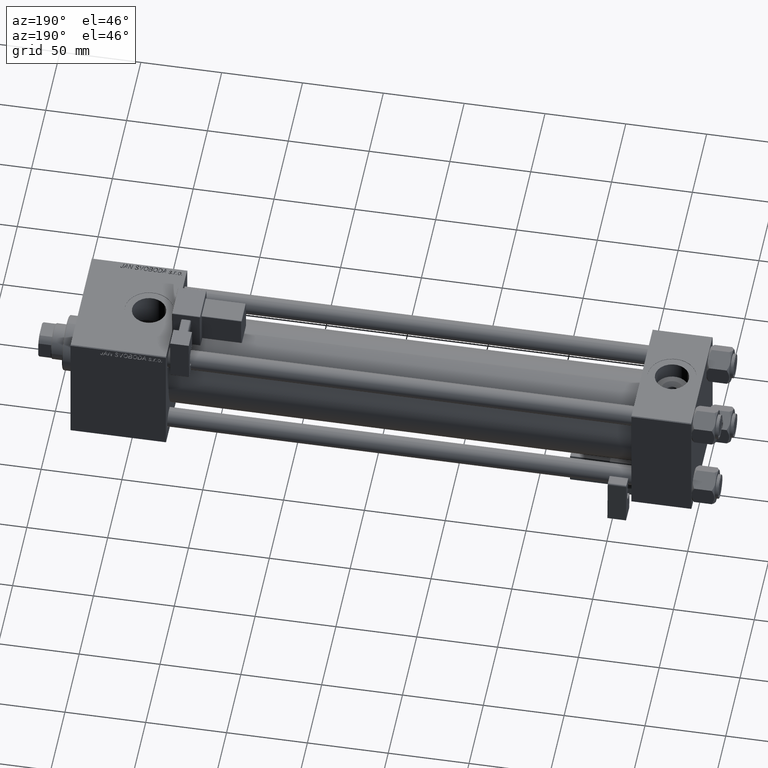
[diagram: clean part render]
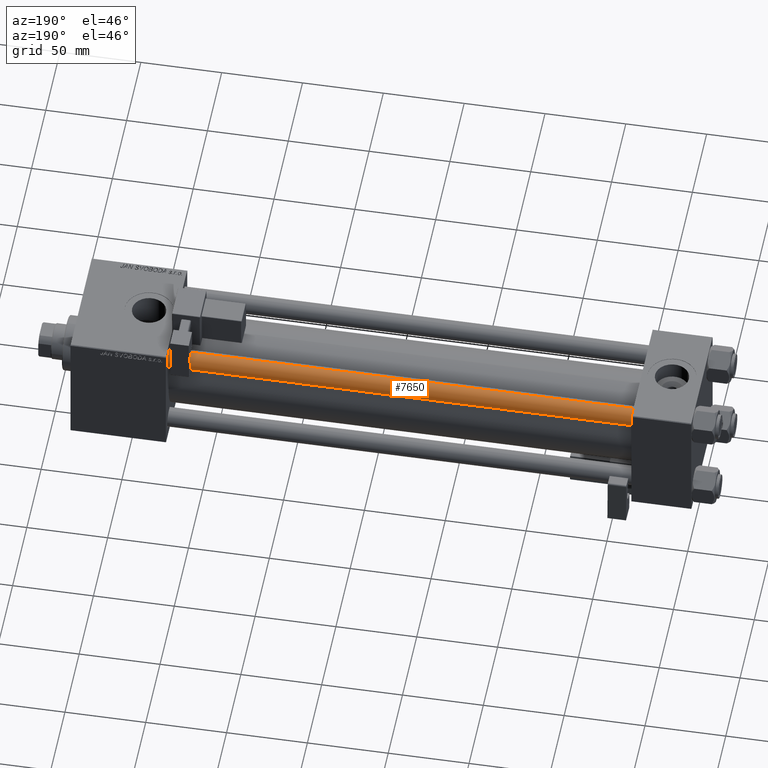
[diagram: same view with one face highlighted and labeled with its STEP entity id]
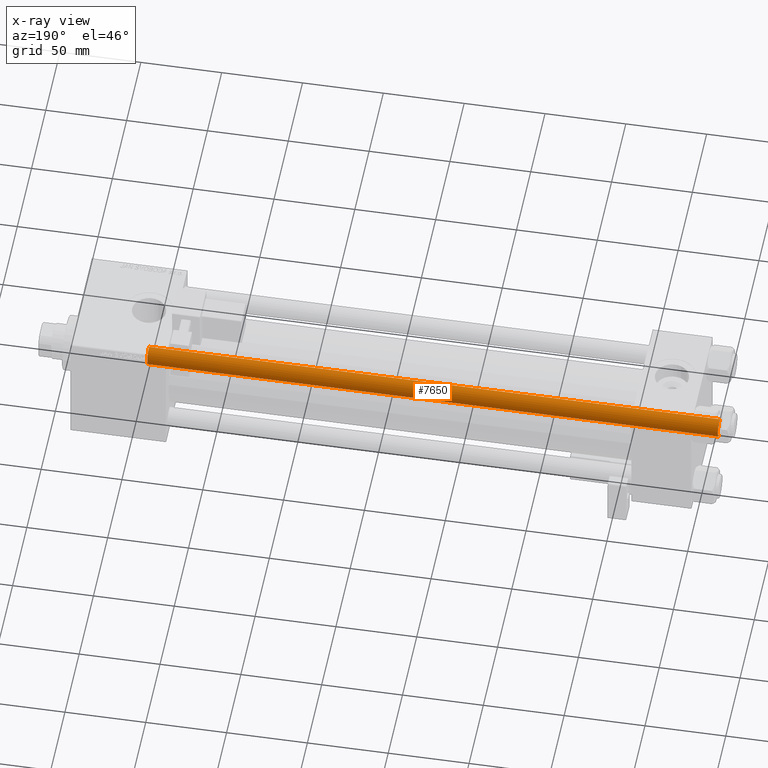
[diagram: x-ray of the same camera — body ghosted, the highlighted face saturated]
A machine part, auxiliary view. The second image highlights one B-rep face of the part: STEP entity #7650.
The next image is the same camera in x-ray: the body ghosted, the highlighted face saturated — about 0% of this face is hidden behind the body in this view.
In plain terms, the highlighted cylindrical surface (edge-blend (fillet) strip) has radius 6 mm, axis along (-1, 0, 0).
Its self-contained STEP definition (entity closure, byte-faithful):
#176 = DIRECTION ( 'NONE',  ( 1.000000000000000000, 0.000000000000000000, 0.000000000000000000 ) ) ;
#1728 = EDGE_LOOP ( 'NONE', ( #10788, #41947, #23946, #1895 ) ) ;
#1895 = ORIENTED_EDGE ( 'NONE', *, *, #5714, .F. ) ;
#1977 = CARTESIAN_POINT ( 'NONE',  ( 6.000000000000000888, 7.347880794884120722E-16, 353.5000000000000000 ) ) ;
#2108 = VERTEX_POINT ( 'NONE', #26701 ) ;
#3362 = EDGE_CURVE ( 'NONE', #43978, #2108, #4165, .T. ) ;
#3498 = CIRCLE ( 'NONE', #12808, 6.000000000000000888 ) ;
#3668 = CARTESIAN_POINT ( 'NONE',  ( 0.000000000000000000, 0.000000000000000000, 0.5000000000000559552 ) ) ;
#4165 = LINE ( 'NONE', #23565, #50413 ) ;
#5714 = EDGE_CURVE ( 'NONE', #30807, #16903, #34558, .T. ) ;
#7650 = ADVANCED_FACE ( 'NONE', ( #24934 ), #16948, .T. ) ;
#10788 = ORIENTED_EDGE ( 'NONE', *, *, #15329, .T. ) ;
#12808 = AXIS2_PLACEMENT_3D ( 'NONE', #36579, #32336, #176 ) ;
#13726 = DIRECTION ( 'NONE',  ( -0.000000000000000000, -0.000000000000000000, -1.000000000000000000 ) ) ;
#15329 = EDGE_CURVE ( 'NONE', #30807, #43978, #3498, .T. ) ;
#16696 = CARTESIAN_POINT ( 'NONE',  ( 0.000000000000000000, 0.000000000000000000, 354.0000000000000000 ) ) ;
#16903 = VERTEX_POINT ( 'NONE', #29578 ) ;
#16948 = CYLINDRICAL_SURFACE ( 'NONE', #35585, 6.000000000000000888 ) ;
#22604 = DIRECTION ( 'NONE',  ( -0.000000000000000000, -0.000000000000000000, -1.000000000000000000 ) ) ;
#23565 = CARTESIAN_POINT ( 'NONE',  ( 6.000000000000000888, 7.347880794884120722E-16, 354.0000000000000000 ) ) ;
#23946 = ORIENTED_EDGE ( 'NONE', *, *, #45522, .T. ) ;
#24934 = FACE_OUTER_BOUND ( 'NONE', #1728, .T. ) ;
#26701 = CARTESIAN_POINT ( 'NONE',  ( 6.000000000000000888, 7.347880794884120722E-16, 0.5000000000000559552 ) ) ;
#28854 = CIRCLE ( 'NONE', #39062, 6.000000000000000888 ) ;
#29578 = CARTESIAN_POINT ( 'NONE',  ( -6.000000000000000888, 0.000000000000000000, 0.5000000000000559552 ) ) ;
#30575 = CARTESIAN_POINT ( 'NONE',  ( -6.000000000000000888, 0.000000000000000000, 354.0000000000000000 ) ) ;
#30807 = VERTEX_POINT ( 'NONE', #35149 ) ;
#32336 = DIRECTION ( 'NONE',  ( 0.000000000000000000, 0.000000000000000000, -1.000000000000000000 ) ) ;
#32895 = DIRECTION ( 'NONE',  ( -1.000000000000000000, 0.000000000000000000, 0.000000000000000000 ) ) ;
#34558 = LINE ( 'NONE', #30575, #38027 ) ;
#35149 = CARTESIAN_POINT ( 'NONE',  ( -6.000000000000000888, 0.000000000000000000, 353.5000000000000000 ) ) ;
#35585 = AXIS2_PLACEMENT_3D ( 'NONE', #16696, #13726, #32895 ) ;
#36579 = CARTESIAN_POINT ( 'NONE',  ( 0.000000000000000000, 0.000000000000000000, 353.5000000000000000 ) ) ;
#38027 = VECTOR ( 'NONE', #22604, 1000.000000000000000 ) ;
#39062 = AXIS2_PLACEMENT_3D ( 'NONE', #3668, #43847, #40918 ) ;
#40918 = DIRECTION ( 'NONE',  ( 1.000000000000000000, 0.000000000000000000, 0.000000000000000000 ) ) ;
#41947 = ORIENTED_EDGE ( 'NONE', *, *, #3362, .T. ) ;
#43847 = DIRECTION ( 'NONE',  ( -0.000000000000000000, -0.000000000000000000, 1.000000000000000000 ) ) ;
#43978 = VERTEX_POINT ( 'NONE', #1977 ) ;
#45522 = EDGE_CURVE ( 'NONE', #2108, #16903, #28854, .T. ) ;
#48014 = DIRECTION ( 'NONE',  ( -0.000000000000000000, -0.000000000000000000, -1.000000000000000000 ) ) ;
#50413 = VECTOR ( 'NONE', #48014, 1000.000000000000000 ) ;